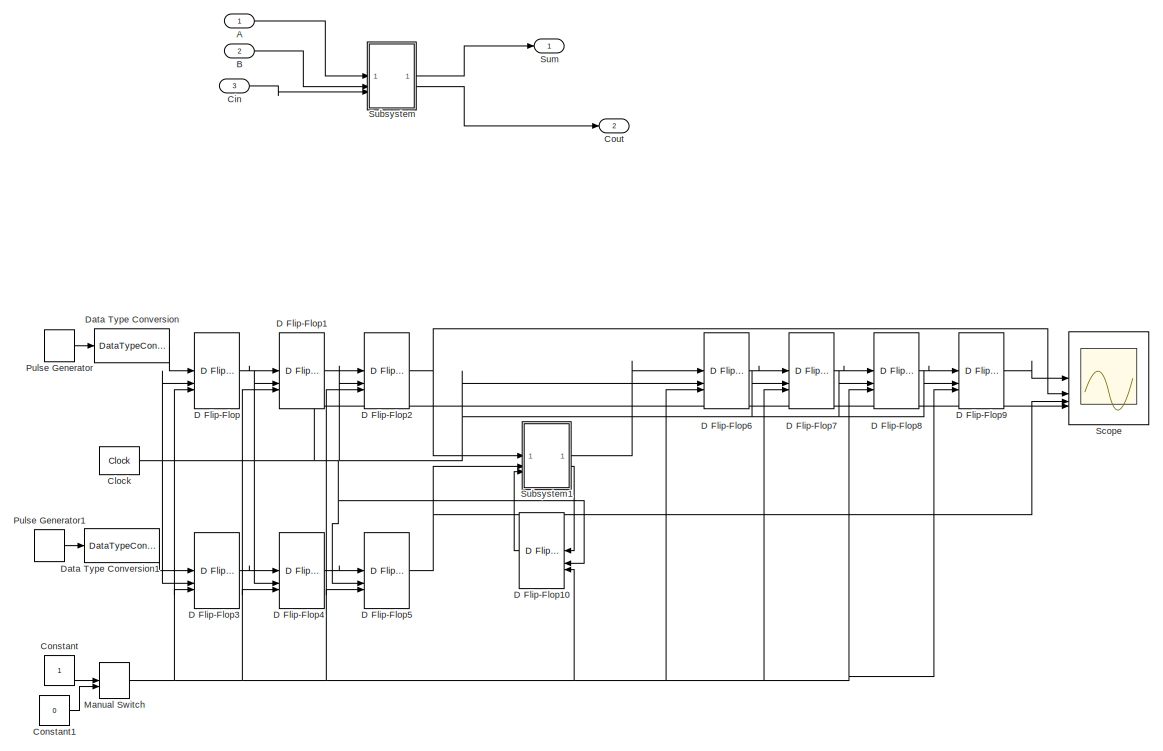
[diagram: root canvas - part 1/2, full width, top band]
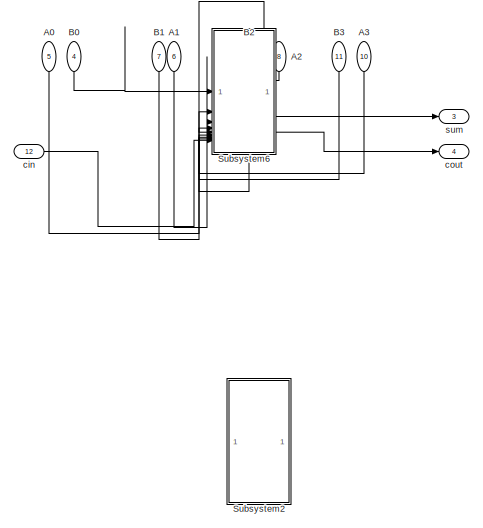
[diagram: root canvas - part 2/2, bottom center region]
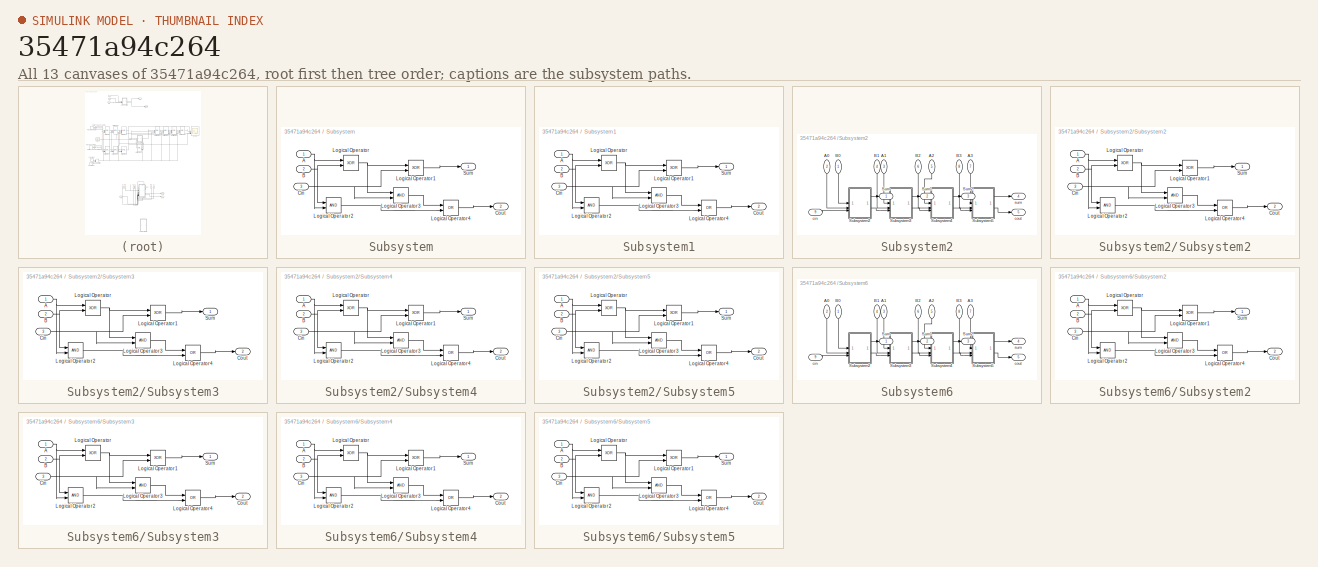
[diagram: thumbnail index - all 13 canvases of the model, root first then tree order]
MODEL slx_35471a94c264
KIND model
CONFIG AbsTol = auto
CONFIG EnableMultiTasking = off
CONFIG FixedStep = auto
CONFIG MaxStep = auto
CONFIG MinStep = auto
CONFIG RelTol = 1e-3
CONFIG SampleTimeConstraint = Unconstrained
CONFIG SolverName = VariableStepAuto
CONFIG StartTime = 0.0
CONFIG StopTime = 10
BLOCK [Inport] A
BLOCK [Inport] A0
  NameLocation = left
  Port = 5
BLOCK [Inport] A1
  NameLocation = left
  Port = 6
BLOCK [Inport] A2
  NameLocation = left
  Port = 8
BLOCK [Inport] A3
  NameLocation = left
  Port = 10
BLOCK [Inport] B
  Port = 2
BLOCK [Inport] B0
  NameLocation = left
  Port = 4
BLOCK [Inport] B1
  NameLocation = left
  Port = 7
BLOCK [Inport] B2
  NameLocation = left
  Port = 9
BLOCK [Inport] B3
  NameLocation = left
  Port = 11
BLOCK [Inport] Cin
  Port = 3
BLOCK [Reference] Clock  REF=simulink_extras/Flip Flops/Clock
  SourceBlock = simulink_extras/Flip Flops/Clock
  SourceType = Digital clock
BLOCK [Constant] Constant
BLOCK [Constant] Constant1
  Value = 0
BLOCK [Outport] Cout
  Port = 2
BLOCK [Reference] D Flip-Flop  REF=simulink_extras/Flip Flops/D Flip-Flop
  SourceBlock = simulink_extras/Flip Flops/D Flip-Flop
  SourceType = DFlipFlop
BLOCK [Reference] D Flip-Flop1  REF=simulink_extras/Flip Flops/D Flip-Flop
  SourceBlock = simulink_extras/Flip Flops/D Flip-Flop
  SourceType = DFlipFlop
BLOCK [Reference] D Flip-Flop10  REF=simulink_extras/Flip Flops/D Flip-Flop
  NameLocation = top
  SourceBlock = simulink_extras/Flip Flops/D Flip-Flop
  SourceType = DFlipFlop
BLOCK [Reference] D Flip-Flop2  REF=simulink_extras/Flip Flops/D Flip-Flop
  SourceBlock = simulink_extras/Flip Flops/D Flip-Flop
  SourceType = DFlipFlop
BLOCK [Reference] D Flip-Flop3  REF=simulink_extras/Flip Flops/D Flip-Flop
  SourceBlock = simulink_extras/Flip Flops/D Flip-Flop
  SourceType = DFlipFlop
BLOCK [Reference] D Flip-Flop4  REF=simulink_extras/Flip Flops/D Flip-Flop
  SourceBlock = simulink_extras/Flip Flops/D Flip-Flop
  SourceType = DFlipFlop
BLOCK [Reference] D Flip-Flop5  REF=simulink_extras/Flip Flops/D Flip-Flop
  SourceBlock = simulink_extras/Flip Flops/D Flip-Flop
  SourceType = DFlipFlop
BLOCK [Reference] D Flip-Flop6  REF=simulink_extras/Flip Flops/D Flip-Flop
  SourceBlock = simulink_extras/Flip Flops/D Flip-Flop
  SourceType = DFlipFlop
BLOCK [Reference] D Flip-Flop7  REF=simulink_extras/Flip Flops/D Flip-Flop
  SourceBlock = simulink_extras/Flip Flops/D Flip-Flop
  SourceType = DFlipFlop
BLOCK [Reference] D Flip-Flop8  REF=simulink_extras/Flip Flops/D Flip-Flop
  SourceBlock = simulink_extras/Flip Flops/D Flip-Flop
  SourceType = DFlipFlop
BLOCK [Reference] D Flip-Flop9  REF=simulink_extras/Flip Flops/D Flip-Flop
  SourceBlock = simulink_extras/Flip Flops/D Flip-Flop
  SourceType = DFlipFlop
BLOCK [DataTypeConversion] Data Type Conversion
  RndMeth = Floor
  SaturateOnIntegerOverflow = off
BLOCK [DataTypeConversion] Data Type Conversion1
  RndMeth = Floor
  SaturateOnIntegerOverflow = off
BLOCK [ManualSwitch] Manual Switch
BLOCK [DiscretePulseGenerator] Pulse Generator
  PulseType = Time based
  PulseWidth = 50
BLOCK [DiscretePulseGenerator] Pulse Generator1
  Period = 1
  PulseType = Time based
  PulseWidth = 50
BLOCK [Scope] Scope
  Floating = off
  NumInputPorts = 4
  ScopeSpecificationString = Simulink.scopes.TimeScopeBlockCfg('CurrentConfiguration', extmgr.ConfigurationSet(extmgr.Configuration('Core','General UI',true),extmgr.Configuration('Core','Source UI',true),extmgr.Configuration('Sources','WiredSimulink',true),extmgr.Configuration('Visuals','Time Domain',true,'SerializedDisplays',{struct('MinYLimReal','-0.125','MaxYLimReal','1.125','YLabelReal','','MinYLimMag','0.00000','MaxYLimM...<+3362ch>
BLOCK [SubSystem] Subsystem
BLOCK [Inport] Subsystem/A
BLOCK [Inport] Subsystem/B
  Port = 2
BLOCK [Inport] Subsystem/Cin
  Port = 3
BLOCK [Outport] Subsystem/Cout
  Port = 2
BLOCK [Logic] Subsystem/Logical Operator
  AllPortsSameDT = off
  Operator = XOR
  OutDataTypeStr = boolean
BLOCK [Logic] Subsystem/Logical Operator1
  AllPortsSameDT = off
  Operator = XOR
  OutDataTypeStr = boolean
BLOCK [Logic] Subsystem/Logical Operator2
  AllPortsSameDT = off
  OutDataTypeStr = boolean
BLOCK [Logic] Subsystem/Logical Operator3
  AllPortsSameDT = off
  OutDataTypeStr = boolean
BLOCK [Logic] Subsystem/Logical Operator4
  AllPortsSameDT = off
  Operator = OR
  OutDataTypeStr = boolean
BLOCK [Outport] Subsystem/Sum
BLOCK [SubSystem] Subsystem1
BLOCK [Inport] Subsystem1/A
BLOCK [Inport] Subsystem1/B
  Port = 2
BLOCK [Inport] Subsystem1/Cin
  Port = 3
BLOCK [Outport] Subsystem1/Cout
  Port = 2
BLOCK [Logic] Subsystem1/Logical Operator
  AllPortsSameDT = off
  Operator = XOR
  OutDataTypeStr = boolean
BLOCK [Logic] Subsystem1/Logical Operator1
  AllPortsSameDT = off
  Operator = XOR
  OutDataTypeStr = boolean
BLOCK [Logic] Subsystem1/Logical Operator2
  AllPortsSameDT = off
  OutDataTypeStr = boolean
BLOCK [Logic] Subsystem1/Logical Operator3
  AllPortsSameDT = off
  OutDataTypeStr = boolean
BLOCK [Logic] Subsystem1/Logical Operator4
  AllPortsSameDT = off
  Operator = OR
  OutDataTypeStr = boolean
BLOCK [Outport] Subsystem1/Sum
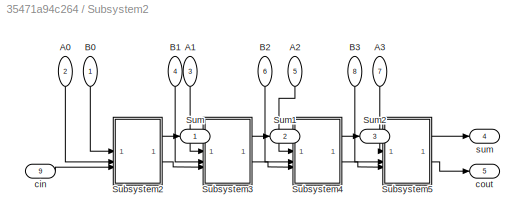
BLOCK [SubSystem] Subsystem2
BLOCK [Inport] Subsystem2/A0
  NameLocation = left
  Port = 2
BLOCK [Inport] Subsystem2/A1
  NameLocation = left
  Port = 3
BLOCK [Inport] Subsystem2/A2
  NameLocation = left
  Port = 5
BLOCK [Inport] Subsystem2/A3
  NameLocation = left
  Port = 7
BLOCK [Inport] Subsystem2/B0
  NameLocation = left
BLOCK [Inport] Subsystem2/B1
  NameLocation = left
  Port = 4
BLOCK [Inport] Subsystem2/B2
  NameLocation = left
  Port = 6
BLOCK [Inport] Subsystem2/B3
  NameLocation = left
  Port = 8
BLOCK [SubSystem] Subsystem2/Subsystem2
BLOCK [Inport] Subsystem2/Subsystem2/A
BLOCK [Inport] Subsystem2/Subsystem2/B
  Port = 2
BLOCK [Inport] Subsystem2/Subsystem2/Cin
  Port = 3
BLOCK [Outport] Subsystem2/Subsystem2/Cout
  Port = 2
BLOCK [Logic] Subsystem2/Subsystem2/Logical Operator
  AllPortsSameDT = off
  Operator = XOR
  OutDataTypeStr = boolean
BLOCK [Logic] Subsystem2/Subsystem2/Logical Operator1
  AllPortsSameDT = off
  Operator = XOR
  OutDataTypeStr = boolean
BLOCK [Logic] Subsystem2/Subsystem2/Logical Operator2
  AllPortsSameDT = off
  OutDataTypeStr = boolean
BLOCK [Logic] Subsystem2/Subsystem2/Logical Operator3
  AllPortsSameDT = off
  OutDataTypeStr = boolean
BLOCK [Logic] Subsystem2/Subsystem2/Logical Operator4
  AllPortsSameDT = off
  Operator = OR
  OutDataTypeStr = boolean
BLOCK [Outport] Subsystem2/Subsystem2/Sum
BLOCK [SubSystem] Subsystem2/Subsystem3
BLOCK [Inport] Subsystem2/Subsystem3/A
BLOCK [Inport] Subsystem2/Subsystem3/B
  Port = 2
BLOCK [Inport] Subsystem2/Subsystem3/Cin
  Port = 3
BLOCK [Outport] Subsystem2/Subsystem3/Cout
  Port = 2
BLOCK [Logic] Subsystem2/Subsystem3/Logical Operator
  AllPortsSameDT = off
  Operator = XOR
  OutDataTypeStr = boolean
BLOCK [Logic] Subsystem2/Subsystem3/Logical Operator1
  AllPortsSameDT = off
  Operator = XOR
  OutDataTypeStr = boolean
BLOCK [Logic] Subsystem2/Subsystem3/Logical Operator2
  AllPortsSameDT = off
  OutDataTypeStr = boolean
BLOCK [Logic] Subsystem2/Subsystem3/Logical Operator3
  AllPortsSameDT = off
  OutDataTypeStr = boolean
BLOCK [Logic] Subsystem2/Subsystem3/Logical Operator4
  AllPortsSameDT = off
  Operator = OR
  OutDataTypeStr = boolean
BLOCK [Outport] Subsystem2/Subsystem3/Sum
BLOCK [SubSystem] Subsystem2/Subsystem4
BLOCK [Inport] Subsystem2/Subsystem4/A
BLOCK [Inport] Subsystem2/Subsystem4/B
  Port = 2
BLOCK [Inport] Subsystem2/Subsystem4/Cin
  Port = 3
BLOCK [Outport] Subsystem2/Subsystem4/Cout
  Port = 2
BLOCK [Logic] Subsystem2/Subsystem4/Logical Operator
  AllPortsSameDT = off
  Operator = XOR
  OutDataTypeStr = boolean
BLOCK [Logic] Subsystem2/Subsystem4/Logical Operator1
  AllPortsSameDT = off
  Operator = XOR
  OutDataTypeStr = boolean
BLOCK [Logic] Subsystem2/Subsystem4/Logical Operator2
  AllPortsSameDT = off
  OutDataTypeStr = boolean
BLOCK [Logic] Subsystem2/Subsystem4/Logical Operator3
  AllPortsSameDT = off
  OutDataTypeStr = boolean
BLOCK [Logic] Subsystem2/Subsystem4/Logical Operator4
  AllPortsSameDT = off
  Operator = OR
  OutDataTypeStr = boolean
BLOCK [Outport] Subsystem2/Subsystem4/Sum
BLOCK [SubSystem] Subsystem2/Subsystem5
BLOCK [Inport] Subsystem2/Subsystem5/A
BLOCK [Inport] Subsystem2/Subsystem5/B
  Port = 2
BLOCK [Inport] Subsystem2/Subsystem5/Cin
  Port = 3
BLOCK [Outport] Subsystem2/Subsystem5/Cout
  Port = 2
BLOCK [Logic] Subsystem2/Subsystem5/Logical Operator
  AllPortsSameDT = off
  Operator = XOR
  OutDataTypeStr = boolean
BLOCK [Logic] Subsystem2/Subsystem5/Logical Operator1
  AllPortsSameDT = off
  Operator = XOR
  OutDataTypeStr = boolean
BLOCK [Logic] Subsystem2/Subsystem5/Logical Operator2
  AllPortsSameDT = off
  OutDataTypeStr = boolean
BLOCK [Logic] Subsystem2/Subsystem5/Logical Operator3
  AllPortsSameDT = off
  OutDataTypeStr = boolean
BLOCK [Logic] Subsystem2/Subsystem5/Logical Operator4
  AllPortsSameDT = off
  Operator = OR
  OutDataTypeStr = boolean
BLOCK [Outport] Subsystem2/Subsystem5/Sum
BLOCK [Outport] Subsystem2/Sum
BLOCK [Outport] Subsystem2/Sum1
  Port = 2
BLOCK [Outport] Subsystem2/Sum2
  Port = 3
BLOCK [Inport] Subsystem2/cin
  Port = 9
BLOCK [Outport] Subsystem2/cout
  Port = 5
BLOCK [Outport] Subsystem2/sum
  Port = 4
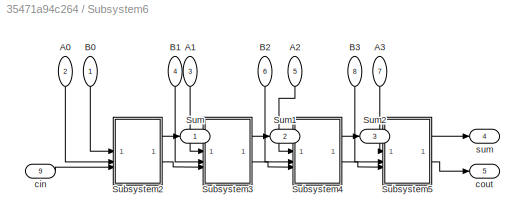
BLOCK [SubSystem] Subsystem6
BLOCK [Inport] Subsystem6/A0
  NameLocation = left
  Port = 2
BLOCK [Inport] Subsystem6/A1
  NameLocation = left
  Port = 3
BLOCK [Inport] Subsystem6/A2
  NameLocation = left
  Port = 5
BLOCK [Inport] Subsystem6/A3
  NameLocation = left
  Port = 7
BLOCK [Inport] Subsystem6/B0
  NameLocation = left
BLOCK [Inport] Subsystem6/B1
  NameLocation = left
  Port = 4
BLOCK [Inport] Subsystem6/B2
  NameLocation = left
  Port = 6
BLOCK [Inport] Subsystem6/B3
  NameLocation = left
  Port = 8
BLOCK [SubSystem] Subsystem6/Subsystem2
BLOCK [Inport] Subsystem6/Subsystem2/A
BLOCK [Inport] Subsystem6/Subsystem2/B
  Port = 2
BLOCK [Inport] Subsystem6/Subsystem2/Cin
  Port = 3
BLOCK [Outport] Subsystem6/Subsystem2/Cout
  Port = 2
BLOCK [Logic] Subsystem6/Subsystem2/Logical Operator
  AllPortsSameDT = off
  Operator = XOR
  OutDataTypeStr = boolean
BLOCK [Logic] Subsystem6/Subsystem2/Logical Operator1
  AllPortsSameDT = off
  Operator = XOR
  OutDataTypeStr = boolean
BLOCK [Logic] Subsystem6/Subsystem2/Logical Operator2
  AllPortsSameDT = off
  OutDataTypeStr = boolean
BLOCK [Logic] Subsystem6/Subsystem2/Logical Operator3
  AllPortsSameDT = off
  OutDataTypeStr = boolean
BLOCK [Logic] Subsystem6/Subsystem2/Logical Operator4
  AllPortsSameDT = off
  Operator = OR
  OutDataTypeStr = boolean
BLOCK [Outport] Subsystem6/Subsystem2/Sum
BLOCK [SubSystem] Subsystem6/Subsystem3
BLOCK [Inport] Subsystem6/Subsystem3/A
BLOCK [Inport] Subsystem6/Subsystem3/B
  Port = 2
BLOCK [Inport] Subsystem6/Subsystem3/Cin
  Port = 3
BLOCK [Outport] Subsystem6/Subsystem3/Cout
  Port = 2
BLOCK [Logic] Subsystem6/Subsystem3/Logical Operator
  AllPortsSameDT = off
  Operator = XOR
  OutDataTypeStr = boolean
BLOCK [Logic] Subsystem6/Subsystem3/Logical Operator1
  AllPortsSameDT = off
  Operator = XOR
  OutDataTypeStr = boolean
BLOCK [Logic] Subsystem6/Subsystem3/Logical Operator2
  AllPortsSameDT = off
  OutDataTypeStr = boolean
BLOCK [Logic] Subsystem6/Subsystem3/Logical Operator3
  AllPortsSameDT = off
  OutDataTypeStr = boolean
BLOCK [Logic] Subsystem6/Subsystem3/Logical Operator4
  AllPortsSameDT = off
  Operator = OR
  OutDataTypeStr = boolean
BLOCK [Outport] Subsystem6/Subsystem3/Sum
BLOCK [SubSystem] Subsystem6/Subsystem4
BLOCK [Inport] Subsystem6/Subsystem4/A
BLOCK [Inport] Subsystem6/Subsystem4/B
  Port = 2
BLOCK [Inport] Subsystem6/Subsystem4/Cin
  Port = 3
BLOCK [Outport] Subsystem6/Subsystem4/Cout
  Port = 2
BLOCK [Logic] Subsystem6/Subsystem4/Logical Operator
  AllPortsSameDT = off
  Operator = XOR
  OutDataTypeStr = boolean
BLOCK [Logic] Subsystem6/Subsystem4/Logical Operator1
  AllPortsSameDT = off
  Operator = XOR
  OutDataTypeStr = boolean
BLOCK [Logic] Subsystem6/Subsystem4/Logical Operator2
  AllPortsSameDT = off
  OutDataTypeStr = boolean
BLOCK [Logic] Subsystem6/Subsystem4/Logical Operator3
  AllPortsSameDT = off
  OutDataTypeStr = boolean
BLOCK [Logic] Subsystem6/Subsystem4/Logical Operator4
  AllPortsSameDT = off
  Operator = OR
  OutDataTypeStr = boolean
BLOCK [Outport] Subsystem6/Subsystem4/Sum
BLOCK [SubSystem] Subsystem6/Subsystem5
BLOCK [Inport] Subsystem6/Subsystem5/A
BLOCK [Inport] Subsystem6/Subsystem5/B
  Port = 2
BLOCK [Inport] Subsystem6/Subsystem5/Cin
  Port = 3
BLOCK [Outport] Subsystem6/Subsystem5/Cout
  Port = 2
BLOCK [Logic] Subsystem6/Subsystem5/Logical Operator
  AllPortsSameDT = off
  Operator = XOR
  OutDataTypeStr = boolean
BLOCK [Logic] Subsystem6/Subsystem5/Logical Operator1
  AllPortsSameDT = off
  Operator = XOR
  OutDataTypeStr = boolean
BLOCK [Logic] Subsystem6/Subsystem5/Logical Operator2
  AllPortsSameDT = off
  OutDataTypeStr = boolean
BLOCK [Logic] Subsystem6/Subsystem5/Logical Operator3
  AllPortsSameDT = off
  OutDataTypeStr = boolean
BLOCK [Logic] Subsystem6/Subsystem5/Logical Operator4
  AllPortsSameDT = off
  Operator = OR
  OutDataTypeStr = boolean
BLOCK [Outport] Subsystem6/Subsystem5/Sum
BLOCK [Outport] Subsystem6/Sum
BLOCK [Outport] Subsystem6/Sum1
  Port = 2
BLOCK [Outport] Subsystem6/Sum2
  Port = 3
BLOCK [Inport] Subsystem6/cin
  Port = 9
BLOCK [Outport] Subsystem6/cout
  Port = 5
BLOCK [Outport] Subsystem6/sum
  Port = 4
BLOCK [Outport] Sum
BLOCK [Inport] cin
  Port = 12
BLOCK [Outport] cout
  Port = 4
BLOCK [Outport] sum
  Port = 3
LINE A0:1 -> Subsystem6:2
LINE A1:1 -> Subsystem6:3
LINE A2:1 -> Subsystem6:5
LINE A3:1 -> Subsystem6:7
LINE A:1 -> Subsystem:1
LINE B0:1 -> Subsystem6:1
LINE B1:1 -> Subsystem6:4
LINE B2:1 -> Subsystem6:6
LINE B3:1 -> Subsystem6:8
LINE B:1 -> Subsystem:2
LINE Cin:1 -> Subsystem:3
NET Clock:1 -> D Flip-Flop10:2, D Flip-Flop1:2, D Flip-Flop2:2, D Flip-Flop3:2, D Flip-Flop4:2, D Flip-Flop5:2, D Flip-Flop6:2, D Flip-Flop7:2, D Flip-Flop8:2, D Flip-Flop9:2, D Flip-Flop:2, Scope:4
LINE Constant1:1 -> Manual Switch:2
LINE Constant:1 -> Manual Switch:1
LINE D Flip-Flop10:1 -> Subsystem1:3
LINE D Flip-Flop1:1 -> D Flip-Flop2:1
NET D Flip-Flop2:1 -> Scope:2, Subsystem1:1
LINE D Flip-Flop3:1 -> D Flip-Flop4:1
LINE D Flip-Flop4:1 -> D Flip-Flop5:1
NET D Flip-Flop5:1 -> Scope:3, Subsystem1:2
LINE D Flip-Flop6:1 -> D Flip-Flop7:1
LINE D Flip-Flop7:1 -> D Flip-Flop8:1
LINE D Flip-Flop8:1 -> D Flip-Flop9:1
LINE D Flip-Flop9:1 -> Scope:1
LINE D Flip-Flop:1 -> D Flip-Flop1:1
LINE Data Type Conversion1:1 -> D Flip-Flop3:1
LINE Data Type Conversion:1 -> D Flip-Flop:1
NET Manual Switch:1 -> D Flip-Flop10:3, D Flip-Flop1:3, D Flip-Flop2:3, D Flip-Flop3:3, D Flip-Flop4:3, D Flip-Flop5:3, D Flip-Flop6:3, D Flip-Flop7:3, D Flip-Flop8:3, D Flip-Flop9:3, D Flip-Flop:3
LINE Pulse Generator1:1 -> Data Type Conversion1:1
LINE Pulse Generator:1 -> Data Type Conversion:1
NET Subsystem/A:1 -> Subsystem/Logical Operator2:2, Subsystem/Logical Operator:1
NET Subsystem/B:1 -> Subsystem/Logical Operator2:1, Subsystem/Logical Operator:2
NET Subsystem/Cin:1 -> Subsystem/Logical Operator1:2, Subsystem/Logical Operator3:2
LINE Subsystem/Logical Operator1:1 -> Subsystem/Sum:1
LINE Subsystem/Logical Operator2:1 -> Subsystem/Logical Operator4:2
LINE Subsystem/Logical Operator3:1 -> Subsystem/Logical Operator4:1
LINE Subsystem/Logical Operator4:1 -> Subsystem/Cout:1
NET Subsystem/Logical Operator:1 -> Subsystem/Logical Operator1:1, Subsystem/Logical Operator3:1
NET Subsystem1/A:1 -> Subsystem1/Logical Operator2:2, Subsystem1/Logical Operator:1
NET Subsystem1/B:1 -> Subsystem1/Logical Operator2:1, Subsystem1/Logical Operator:2
NET Subsystem1/Cin:1 -> Subsystem1/Logical Operator1:2, Subsystem1/Logical Operator3:2
LINE Subsystem1/Logical Operator1:1 -> Subsystem1/Sum:1
LINE Subsystem1/Logical Operator2:1 -> Subsystem1/Logical Operator4:2
LINE Subsystem1/Logical Operator3:1 -> Subsystem1/Logical Operator4:1
LINE Subsystem1/Logical Operator4:1 -> Subsystem1/Cout:1
NET Subsystem1/Logical Operator:1 -> Subsystem1/Logical Operator1:1, Subsystem1/Logical Operator3:1
LINE Subsystem1:1 -> D Flip-Flop6:1
LINE Subsystem1:2 -> D Flip-Flop10:1
LINE Subsystem2/A0:1 -> Subsystem2/Subsystem2:2
LINE Subsystem2/A1:1 -> Subsystem2/Subsystem3:1
LINE Subsystem2/A2:1 -> Subsystem2/Subsystem4:1
LINE Subsystem2/A3:1 -> Subsystem2/Subsystem5:1
LINE Subsystem2/B0:1 -> Subsystem2/Subsystem2:1
LINE Subsystem2/B1:1 -> Subsystem2/Subsystem3:2
LINE Subsystem2/B2:1 -> Subsystem2/Subsystem4:2
LINE Subsystem2/B3:1 -> Subsystem2/Subsystem5:2
NET Subsystem2/Subsystem2/A:1 -> Subsystem2/Subsystem2/Logical Operator2:2, Subsystem2/Subsystem2/Logical Operator:1
NET Subsystem2/Subsystem2/B:1 -> Subsystem2/Subsystem2/Logical Operator2:1, Subsystem2/Subsystem2/Logical Operator:2
NET Subsystem2/Subsystem2/Cin:1 -> Subsystem2/Subsystem2/Logical Operator1:2, Subsystem2/Subsystem2/Logical Operator3:2
LINE Subsystem2/Subsystem2/Logical Operator1:1 -> Subsystem2/Subsystem2/Sum:1
LINE Subsystem2/Subsystem2/Logical Operator2:1 -> Subsystem2/Subsystem2/Logical Operator4:2
LINE Subsystem2/Subsystem2/Logical Operator3:1 -> Subsystem2/Subsystem2/Logical Operator4:1
LINE Subsystem2/Subsystem2/Logical Operator4:1 -> Subsystem2/Subsystem2/Cout:1
NET Subsystem2/Subsystem2/Logical Operator:1 -> Subsystem2/Subsystem2/Logical Operator1:1, Subsystem2/Subsystem2/Logical Operator3:1
LINE Subsystem2/Subsystem2:1 -> Subsystem2/Sum:1
LINE Subsystem2/Subsystem2:2 -> Subsystem2/Subsystem3:3
NET Subsystem2/Subsystem3/A:1 -> Subsystem2/Subsystem3/Logical Operator2:2, Subsystem2/Subsystem3/Logical Operator:1
NET Subsystem2/Subsystem3/B:1 -> Subsystem2/Subsystem3/Logical Operator2:1, Subsystem2/Subsystem3/Logical Operator:2
NET Subsystem2/Subsystem3/Cin:1 -> Subsystem2/Subsystem3/Logical Operator1:2, Subsystem2/Subsystem3/Logical Operator3:2
LINE Subsystem2/Subsystem3/Logical Operator1:1 -> Subsystem2/Subsystem3/Sum:1
LINE Subsystem2/Subsystem3/Logical Operator2:1 -> Subsystem2/Subsystem3/Logical Operator4:2
LINE Subsystem2/Subsystem3/Logical Operator3:1 -> Subsystem2/Subsystem3/Logical Operator4:1
LINE Subsystem2/Subsystem3/Logical Operator4:1 -> Subsystem2/Subsystem3/Cout:1
NET Subsystem2/Subsystem3/Logical Operator:1 -> Subsystem2/Subsystem3/Logical Operator1:1, Subsystem2/Subsystem3/Logical Operator3:1
LINE Subsystem2/Subsystem3:1 -> Subsystem2/Sum1:1
LINE Subsystem2/Subsystem3:2 -> Subsystem2/Subsystem4:3
NET Subsystem2/Subsystem4/A:1 -> Subsystem2/Subsystem4/Logical Operator2:2, Subsystem2/Subsystem4/Logical Operator:1
NET Subsystem2/Subsystem4/B:1 -> Subsystem2/Subsystem4/Logical Operator2:1, Subsystem2/Subsystem4/Logical Operator:2
NET Subsystem2/Subsystem4/Cin:1 -> Subsystem2/Subsystem4/Logical Operator1:2, Subsystem2/Subsystem4/Logical Operator3:2
LINE Subsystem2/Subsystem4/Logical Operator1:1 -> Subsystem2/Subsystem4/Sum:1
LINE Subsystem2/Subsystem4/Logical Operator2:1 -> Subsystem2/Subsystem4/Logical Operator4:2
LINE Subsystem2/Subsystem4/Logical Operator3:1 -> Subsystem2/Subsystem4/Logical Operator4:1
LINE Subsystem2/Subsystem4/Logical Operator4:1 -> Subsystem2/Subsystem4/Cout:1
NET Subsystem2/Subsystem4/Logical Operator:1 -> Subsystem2/Subsystem4/Logical Operator1:1, Subsystem2/Subsystem4/Logical Operator3:1
LINE Subsystem2/Subsystem4:1 -> Subsystem2/Sum2:1
LINE Subsystem2/Subsystem4:2 -> Subsystem2/Subsystem5:3
NET Subsystem2/Subsystem5/A:1 -> Subsystem2/Subsystem5/Logical Operator2:2, Subsystem2/Subsystem5/Logical Operator:1
NET Subsystem2/Subsystem5/B:1 -> Subsystem2/Subsystem5/Logical Operator2:1, Subsystem2/Subsystem5/Logical Operator:2
NET Subsystem2/Subsystem5/Cin:1 -> Subsystem2/Subsystem5/Logical Operator1:2, Subsystem2/Subsystem5/Logical Operator3:2
LINE Subsystem2/Subsystem5/Logical Operator1:1 -> Subsystem2/Subsystem5/Sum:1
LINE Subsystem2/Subsystem5/Logical Operator2:1 -> Subsystem2/Subsystem5/Logical Operator4:2
LINE Subsystem2/Subsystem5/Logical Operator3:1 -> Subsystem2/Subsystem5/Logical Operator4:1
LINE Subsystem2/Subsystem5/Logical Operator4:1 -> Subsystem2/Subsystem5/Cout:1
NET Subsystem2/Subsystem5/Logical Operator:1 -> Subsystem2/Subsystem5/Logical Operator1:1, Subsystem2/Subsystem5/Logical Operator3:1
LINE Subsystem2/Subsystem5:1 -> Subsystem2/sum:1
LINE Subsystem2/Subsystem5:2 -> Subsystem2/cout:1
LINE Subsystem2/cin:1 -> Subsystem2/Subsystem2:3
LINE Subsystem6/A0:1 -> Subsystem6/Subsystem2:2
LINE Subsystem6/A1:1 -> Subsystem6/Subsystem3:1
LINE Subsystem6/A2:1 -> Subsystem6/Subsystem4:1
LINE Subsystem6/A3:1 -> Subsystem6/Subsystem5:1
LINE Subsystem6/B0:1 -> Subsystem6/Subsystem2:1
LINE Subsystem6/B1:1 -> Subsystem6/Subsystem3:2
LINE Subsystem6/B2:1 -> Subsystem6/Subsystem4:2
LINE Subsystem6/B3:1 -> Subsystem6/Subsystem5:2
NET Subsystem6/Subsystem2/A:1 -> Subsystem6/Subsystem2/Logical Operator2:2, Subsystem6/Subsystem2/Logical Operator:1
NET Subsystem6/Subsystem2/B:1 -> Subsystem6/Subsystem2/Logical Operator2:1, Subsystem6/Subsystem2/Logical Operator:2
NET Subsystem6/Subsystem2/Cin:1 -> Subsystem6/Subsystem2/Logical Operator1:2, Subsystem6/Subsystem2/Logical Operator3:2
LINE Subsystem6/Subsystem2/Logical Operator1:1 -> Subsystem6/Subsystem2/Sum:1
LINE Subsystem6/Subsystem2/Logical Operator2:1 -> Subsystem6/Subsystem2/Logical Operator4:2
LINE Subsystem6/Subsystem2/Logical Operator3:1 -> Subsystem6/Subsystem2/Logical Operator4:1
LINE Subsystem6/Subsystem2/Logical Operator4:1 -> Subsystem6/Subsystem2/Cout:1
NET Subsystem6/Subsystem2/Logical Operator:1 -> Subsystem6/Subsystem2/Logical Operator1:1, Subsystem6/Subsystem2/Logical Operator3:1
LINE Subsystem6/Subsystem2:1 -> Subsystem6/Sum:1
LINE Subsystem6/Subsystem2:2 -> Subsystem6/Subsystem3:3
NET Subsystem6/Subsystem3/A:1 -> Subsystem6/Subsystem3/Logical Operator2:2, Subsystem6/Subsystem3/Logical Operator:1
NET Subsystem6/Subsystem3/B:1 -> Subsystem6/Subsystem3/Logical Operator2:1, Subsystem6/Subsystem3/Logical Operator:2
NET Subsystem6/Subsystem3/Cin:1 -> Subsystem6/Subsystem3/Logical Operator1:2, Subsystem6/Subsystem3/Logical Operator3:2
LINE Subsystem6/Subsystem3/Logical Operator1:1 -> Subsystem6/Subsystem3/Sum:1
LINE Subsystem6/Subsystem3/Logical Operator2:1 -> Subsystem6/Subsystem3/Logical Operator4:2
LINE Subsystem6/Subsystem3/Logical Operator3:1 -> Subsystem6/Subsystem3/Logical Operator4:1
LINE Subsystem6/Subsystem3/Logical Operator4:1 -> Subsystem6/Subsystem3/Cout:1
NET Subsystem6/Subsystem3/Logical Operator:1 -> Subsystem6/Subsystem3/Logical Operator1:1, Subsystem6/Subsystem3/Logical Operator3:1
LINE Subsystem6/Subsystem3:1 -> Subsystem6/Sum1:1
LINE Subsystem6/Subsystem3:2 -> Subsystem6/Subsystem4:3
NET Subsystem6/Subsystem4/A:1 -> Subsystem6/Subsystem4/Logical Operator2:2, Subsystem6/Subsystem4/Logical Operator:1
NET Subsystem6/Subsystem4/B:1 -> Subsystem6/Subsystem4/Logical Operator2:1, Subsystem6/Subsystem4/Logical Operator:2
NET Subsystem6/Subsystem4/Cin:1 -> Subsystem6/Subsystem4/Logical Operator1:2, Subsystem6/Subsystem4/Logical Operator3:2
LINE Subsystem6/Subsystem4/Logical Operator1:1 -> Subsystem6/Subsystem4/Sum:1
LINE Subsystem6/Subsystem4/Logical Operator2:1 -> Subsystem6/Subsystem4/Logical Operator4:2
LINE Subsystem6/Subsystem4/Logical Operator3:1 -> Subsystem6/Subsystem4/Logical Operator4:1
LINE Subsystem6/Subsystem4/Logical Operator4:1 -> Subsystem6/Subsystem4/Cout:1
NET Subsystem6/Subsystem4/Logical Operator:1 -> Subsystem6/Subsystem4/Logical Operator1:1, Subsystem6/Subsystem4/Logical Operator3:1
LINE Subsystem6/Subsystem4:1 -> Subsystem6/Sum2:1
LINE Subsystem6/Subsystem4:2 -> Subsystem6/Subsystem5:3
NET Subsystem6/Subsystem5/A:1 -> Subsystem6/Subsystem5/Logical Operator2:2, Subsystem6/Subsystem5/Logical Operator:1
NET Subsystem6/Subsystem5/B:1 -> Subsystem6/Subsystem5/Logical Operator2:1, Subsystem6/Subsystem5/Logical Operator:2
NET Subsystem6/Subsystem5/Cin:1 -> Subsystem6/Subsystem5/Logical Operator1:2, Subsystem6/Subsystem5/Logical Operator3:2
LINE Subsystem6/Subsystem5/Logical Operator1:1 -> Subsystem6/Subsystem5/Sum:1
LINE Subsystem6/Subsystem5/Logical Operator2:1 -> Subsystem6/Subsystem5/Logical Operator4:2
LINE Subsystem6/Subsystem5/Logical Operator3:1 -> Subsystem6/Subsystem5/Logical Operator4:1
LINE Subsystem6/Subsystem5/Logical Operator4:1 -> Subsystem6/Subsystem5/Cout:1
NET Subsystem6/Subsystem5/Logical Operator:1 -> Subsystem6/Subsystem5/Logical Operator1:1, Subsystem6/Subsystem5/Logical Operator3:1
LINE Subsystem6/Subsystem5:1 -> Subsystem6/sum:1
LINE Subsystem6/Subsystem5:2 -> Subsystem6/cout:1
LINE Subsystem6/cin:1 -> Subsystem6/Subsystem2:3
LINE Subsystem6:4 -> sum:1
LINE Subsystem6:5 -> cout:1
LINE Subsystem:1 -> Sum:1
LINE Subsystem:2 -> Cout:1
LINE cin:1 -> Subsystem6:9
note: NET lines group one-source signal fan-out (src -> all destinations, sorted); 1:1 wires keep LINE
